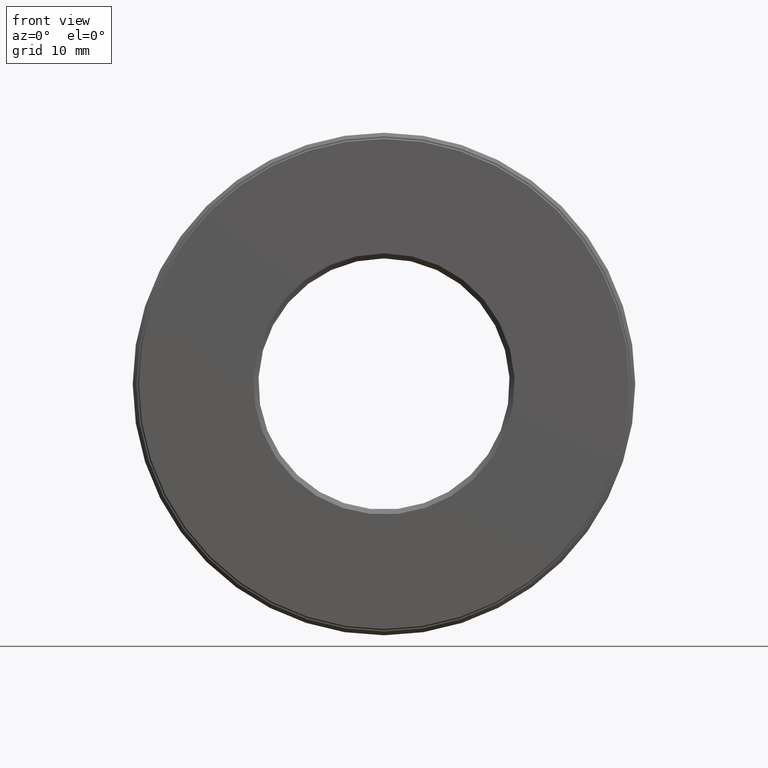
[diagram: clean part render]
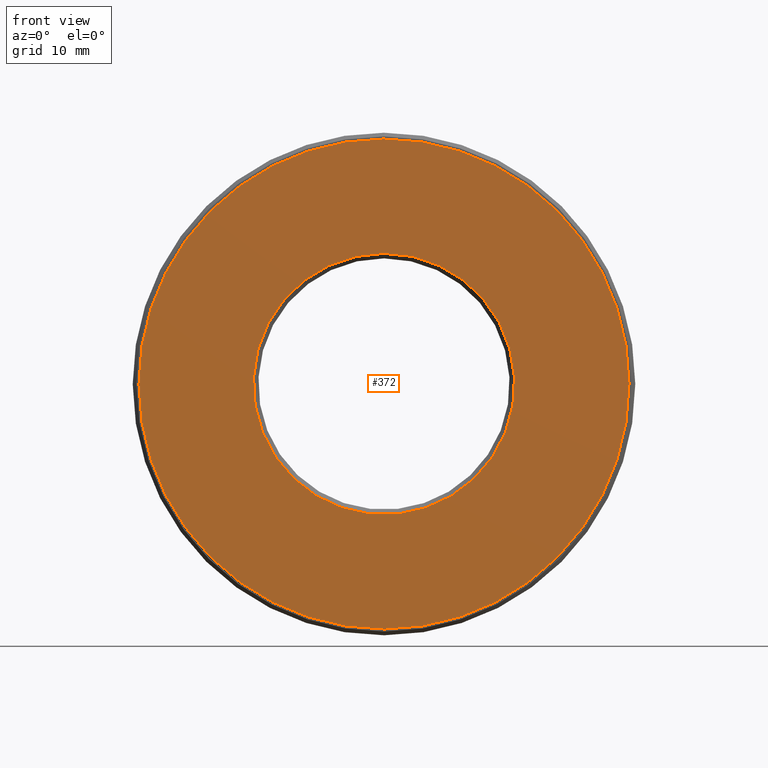
[diagram: same view with one face highlighted and labeled with its STEP entity id]
A machine part, front view. The second image highlights one B-rep face of the part: STEP entity #372.
In plain terms, the highlighted planar face has unit normal (-0, 1, 0).
Its self-contained STEP definition (entity closure, byte-faithful):
#7 = AXIS2_PLACEMENT_3D ( 'NONE', #485, #588, #363 ) ;
#17 = PLANE ( 'NONE',  #570 ) ;
#28 = VERTEX_POINT ( 'NONE', #544 ) ;
#33 = CARTESIAN_POINT ( 'NONE',  ( 0.0000000000000000000, -6.296055922898107200E-017, 0.9749999999999999800 ) ) ;
#56 = EDGE_CURVE ( 'NONE', #488, #488, #316, .T. ) ;
#171 = ORIENTED_EDGE ( 'NONE', *, *, #56, .F. ) ;
#184 = DIRECTION ( 'NONE',  ( -0.0000000000000000000, 1.000000000000000000, -0.0000000000000000000 ) ) ;
#249 = CARTESIAN_POINT ( 'NONE',  ( -9.956752322577165600E-033, 2.667820306312757000E-018, 0.0000000000000000000 ) ) ;
#316 = CIRCLE ( 'NONE', #340, 0.9749999999999999800 ) ;
#340 = AXIS2_PLACEMENT_3D ( 'NONE', #460, #184, #379 ) ;
#363 = DIRECTION ( 'NONE',  ( 0.0000000000000000000, 0.0000000000000000000, 1.000000000000000000 ) ) ;
#372 = ADVANCED_FACE ( 'NONE', ( #458, #601 ), #17, .F. ) ;
#379 = DIRECTION ( 'NONE',  ( 0.0000000000000000000, 0.0000000000000000000, 1.000000000000000000 ) ) ;
#407 = EDGE_LOOP ( 'NONE', ( #171 ) ) ;
#454 = CIRCLE ( 'NONE', #7, 0.5200000000000000200 ) ;
#458 = FACE_OUTER_BOUND ( 'NONE', #407, .T. ) ;
#460 = CARTESIAN_POINT ( 'NONE',  ( 0.0000000000000000000, -6.296055922898107200E-017, 0.0000000000000000000 ) ) ;
#482 = ORIENTED_EDGE ( 'NONE', *, *, #593, .T. ) ;
#485 = CARTESIAN_POINT ( 'NONE',  ( 0.0000000000000000000, 6.829619984160658000E-017, 0.0000000000000000000 ) ) ;
#488 = VERTEX_POINT ( 'NONE', #33 ) ;
#513 = EDGE_LOOP ( 'NONE', ( #482 ) ) ;
#544 = CARTESIAN_POINT ( 'NONE',  ( 0.0000000000000000000, 6.829619984160658000E-017, 0.5200000000000000200 ) ) ;
#570 = AXIS2_PLACEMENT_3D ( 'NONE', #249, #582, #574 ) ;
#574 = DIRECTION ( 'NONE',  ( 0.0000000000000000000, 0.0000000000000000000, 1.000000000000000000 ) ) ;
#582 = DIRECTION ( 'NONE',  ( -0.0000000000000000000, 1.000000000000000000, 0.0000000000000000000 ) ) ;
#588 = DIRECTION ( 'NONE',  ( -0.0000000000000000000, 1.000000000000000000, -0.0000000000000000000 ) ) ;
#593 = EDGE_CURVE ( 'NONE', #28, #28, #454, .T. ) ;
#601 = FACE_BOUND ( 'NONE', #513, .T. ) ;